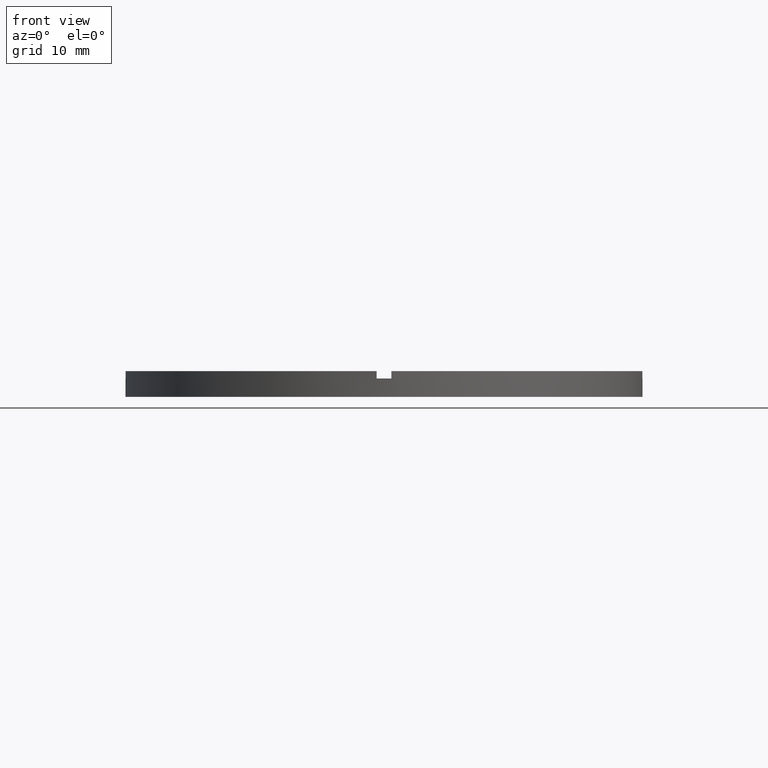
[diagram: clean part render]
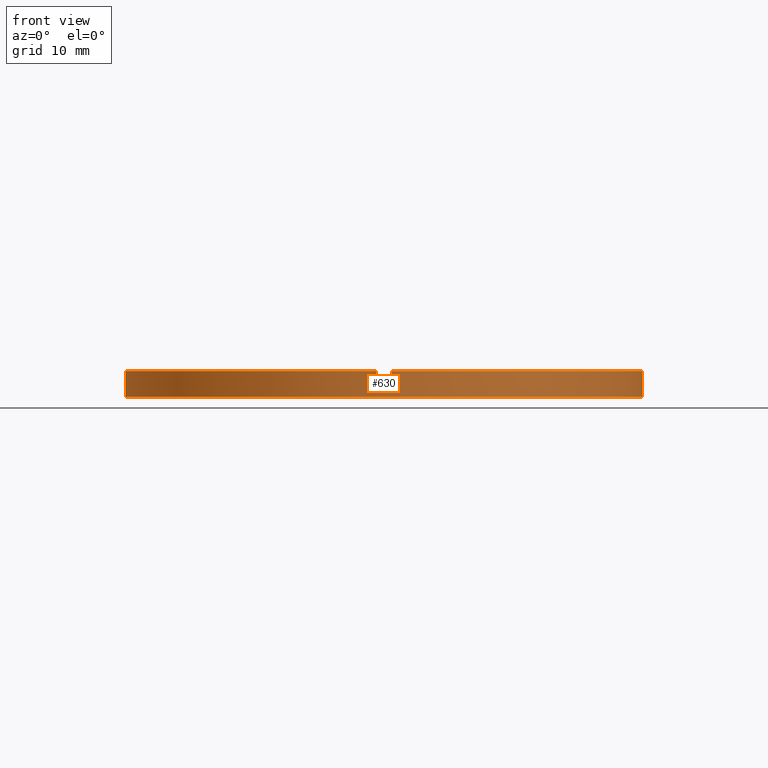
[diagram: same view with one face highlighted and labeled with its STEP entity id]
A machine part, front view. The second image highlights one B-rep face of the part: STEP entity #630.
In plain terms, the highlighted cylindrical surface (partial cylindrical patch) has radius 35 mm, axis along (-0, -0, -1).
Its self-contained STEP definition (entity closure, byte-faithful):
#11 = EDGE_CURVE ( 'NONE', #323, #635, #642, .T. ) ;
#26 = AXIS2_PLACEMENT_3D ( 'NONE', #534, #580, #274 ) ;
#30 = CARTESIAN_POINT ( 'NONE',  ( 0.000000000000000000, 0.000000000000000000, 0.000000000000000000 ) ) ;
#31 = CARTESIAN_POINT ( 'NONE',  ( 34.98571136907180090, -1.000000000000157874, 2.500000000000000000 ) ) ;
#37 = DIRECTION ( 'NONE',  ( 1.000000000000000000, 0.000000000000000000, 0.000000000000000000 ) ) ;
#42 = CARTESIAN_POINT ( 'NONE',  ( -35.00000000000000711, 0.000000000000000000, 3.500000000000000000 ) ) ;
#46 = DIRECTION ( 'NONE',  ( -0.000000000000000000, -0.000000000000000000, -1.000000000000000000 ) ) ;
#52 = CARTESIAN_POINT ( 'NONE',  ( 0.000000000000000000, 0.000000000000000000, 3.500000000000000000 ) ) ;
#67 = VERTEX_POINT ( 'NONE', #544 ) ;
#69 = AXIS2_PLACEMENT_3D ( 'NONE', #52, #279, #566 ) ;
#83 = ORIENTED_EDGE ( 'NONE', *, *, #762, .F. ) ;
#86 = EDGE_CURVE ( 'NONE', #92, #411, #143, .T. ) ;
#92 = VERTEX_POINT ( 'NONE', #213 ) ;
#100 = AXIS2_PLACEMENT_3D ( 'NONE', #535, #431, #37 ) ;
#107 = CARTESIAN_POINT ( 'NONE',  ( 0.9999999999998395728, -34.98571136907181511, 2.500000000000000000 ) ) ;
#113 = ORIENTED_EDGE ( 'NONE', *, *, #616, .T. ) ;
#114 = ORIENTED_EDGE ( 'NONE', *, *, #270, .T. ) ;
#117 = ORIENTED_EDGE ( 'NONE', *, *, #587, .T. ) ;
#126 = VERTEX_POINT ( 'NONE', #317 ) ;
#127 = DIRECTION ( 'NONE',  ( -0.000000000000000000, -0.000000000000000000, -1.000000000000000000 ) ) ;
#128 = CIRCLE ( 'NONE', #681, 35.00000000000000711 ) ;
#135 = EDGE_CURVE ( 'NONE', #411, #126, #128, .T. ) ;
#143 = LINE ( 'NONE', #42, #654 ) ;
#146 = ORIENTED_EDGE ( 'NONE', *, *, #384, .F. ) ;
#151 = EDGE_LOOP ( 'NONE', ( #341, #83, #432, #146, #117, #603, #114, #375, #113, #434, #353, #357 ) ) ;
#165 = CARTESIAN_POINT ( 'NONE',  ( -1.000000000000160538, -34.98571136907180090, 3.500000000000000000 ) ) ;
#171 = LINE ( 'NONE', #768, #178 ) ;
#178 = VECTOR ( 'NONE', #741, 1000.000000000000000 ) ;
#180 = AXIS2_PLACEMENT_3D ( 'NONE', #220, #261, #694 ) ;
#181 = LINE ( 'NONE', #320, #452 ) ;
#186 = VECTOR ( 'NONE', #573, 1000.000000000000000 ) ;
#188 = CYLINDRICAL_SURFACE ( 'NONE', #513, 35.00000000000000711 ) ;
#189 = CARTESIAN_POINT ( 'NONE',  ( -35.00000000000000711, 0.000000000000000000, 0.000000000000000000 ) ) ;
#190 = VECTOR ( 'NONE', #750, 1000.000000000000000 ) ;
#209 = CIRCLE ( 'NONE', #26, 35.00000000000000711 ) ;
#213 = CARTESIAN_POINT ( 'NONE',  ( -35.00000000000000711, 0.000000000000000000, 2.500000000000000000 ) ) ;
#220 = CARTESIAN_POINT ( 'NONE',  ( 0.000000000000000000, 0.000000000000000000, 2.500000000000000000 ) ) ;
#238 = DIRECTION ( 'NONE',  ( 0.000000000000000000, 0.000000000000000000, 1.000000000000000000 ) ) ;
#251 = CARTESIAN_POINT ( 'NONE',  ( -34.98571136907180801, -1.000000000000026645, 3.500000000000000000 ) ) ;
#255 = CARTESIAN_POINT ( 'NONE',  ( 35.00000000000000711, 4.286263797015737285E-15, 3.500000000000000000 ) ) ;
#256 = CARTESIAN_POINT ( 'NONE',  ( -1.000000000000160538, -34.98571136907180090, 2.500000000000000000 ) ) ;
#261 = DIRECTION ( 'NONE',  ( -0.000000000000000000, 0.000000000000000000, 1.000000000000000000 ) ) ;
#270 = EDGE_CURVE ( 'NONE', #323, #389, #589, .T. ) ;
#274 = DIRECTION ( 'NONE',  ( 1.000000000000000000, 0.000000000000000000, 0.000000000000000000 ) ) ;
#277 = DIRECTION ( 'NONE',  ( 0.000000000000000000, 0.000000000000000000, 1.000000000000000000 ) ) ;
#279 = DIRECTION ( 'NONE',  ( 0.000000000000000000, 0.000000000000000000, 1.000000000000000000 ) ) ;
#281 = DIRECTION ( 'NONE',  ( -1.000000000000000000, 0.000000000000000000, 0.000000000000000000 ) ) ;
#310 = EDGE_CURVE ( 'NONE', #413, #389, #437, .T. ) ;
#317 = CARTESIAN_POINT ( 'NONE',  ( 35.00000000000000711, 4.286263797015737285E-15, 0.000000000000000000 ) ) ;
#320 = CARTESIAN_POINT ( 'NONE',  ( -34.98571136907180801, -1.000000000000026645, 3.500000000000000000 ) ) ;
#323 = VERTEX_POINT ( 'NONE', #256 ) ;
#340 = DIRECTION ( 'NONE',  ( -0.000000000000000000, -0.000000000000000000, -1.000000000000000000 ) ) ;
#341 = ORIENTED_EDGE ( 'NONE', *, *, #684, .F. ) ;
#353 = ORIENTED_EDGE ( 'NONE', *, *, #86, .T. ) ;
#357 = ORIENTED_EDGE ( 'NONE', *, *, #135, .T. ) ;
#360 = VERTEX_POINT ( 'NONE', #501 ) ;
#375 = ORIENTED_EDGE ( 'NONE', *, *, #310, .F. ) ;
#384 = EDGE_CURVE ( 'NONE', #360, #422, #727, .T. ) ;
#386 = DIRECTION ( 'NONE',  ( 1.000000000000000000, 0.000000000000000000, 0.000000000000000000 ) ) ;
#389 = VERTEX_POINT ( 'NONE', #545 ) ;
#391 = VERTEX_POINT ( 'NONE', #541 ) ;
#411 = VERTEX_POINT ( 'NONE', #189 ) ;
#413 = VERTEX_POINT ( 'NONE', #251 ) ;
#422 = VERTEX_POINT ( 'NONE', #572 ) ;
#431 = DIRECTION ( 'NONE',  ( 0.000000000000000000, 0.000000000000000000, 1.000000000000000000 ) ) ;
#432 = ORIENTED_EDGE ( 'NONE', *, *, #648, .T. ) ;
#434 = ORIENTED_EDGE ( 'NONE', *, *, #470, .F. ) ;
#437 = CIRCLE ( 'NONE', #69, 35.00000000000000711 ) ;
#452 = VECTOR ( 'NONE', #46, 1000.000000000000000 ) ;
#456 = AXIS2_PLACEMENT_3D ( 'NONE', #724, #527, #386 ) ;
#463 = CIRCLE ( 'NONE', #456, 35.00000000000000711 ) ;
#470 = EDGE_CURVE ( 'NONE', #92, #67, #463, .T. ) ;
#501 = CARTESIAN_POINT ( 'NONE',  ( 0.9999999999998395728, -34.98571136907181511, 3.500000000000000000 ) ) ;
#513 = AXIS2_PLACEMENT_3D ( 'NONE', #539, #340, #281 ) ;
#527 = DIRECTION ( 'NONE',  ( 0.000000000000000000, 0.000000000000000000, 1.000000000000000000 ) ) ;
#534 = CARTESIAN_POINT ( 'NONE',  ( 0.000000000000000000, 0.000000000000000000, 2.500000000000000000 ) ) ;
#535 = CARTESIAN_POINT ( 'NONE',  ( 0.000000000000000000, 0.000000000000000000, 3.500000000000000000 ) ) ;
#536 = CARTESIAN_POINT ( 'NONE',  ( 34.98571136907180090, -1.000000000000157874, 3.500000000000000000 ) ) ;
#539 = CARTESIAN_POINT ( 'NONE',  ( 0.000000000000000000, 0.000000000000000000, 3.500000000000000000 ) ) ;
#541 = CARTESIAN_POINT ( 'NONE',  ( 35.00000000000000711, 4.286263797015737285E-15, 2.500000000000000000 ) ) ;
#544 = CARTESIAN_POINT ( 'NONE',  ( -34.98571136907180801, -1.000000000000026645, 2.500000000000000000 ) ) ;
#545 = CARTESIAN_POINT ( 'NONE',  ( -1.000000000000160538, -34.98571136907180090, 3.500000000000000000 ) ) ;
#566 = DIRECTION ( 'NONE',  ( 1.000000000000000000, 0.000000000000000000, 0.000000000000000000 ) ) ;
#572 = CARTESIAN_POINT ( 'NONE',  ( 34.98571136907180090, -1.000000000000157874, 3.500000000000000000 ) ) ;
#573 = DIRECTION ( 'NONE',  ( 0.000000000000000000, 0.000000000000000000, 1.000000000000000000 ) ) ;
#580 = DIRECTION ( 'NONE',  ( 0.000000000000000000, 0.000000000000000000, 1.000000000000000000 ) ) ;
#581 = VECTOR ( 'NONE', #238, 1000.000000000000000 ) ;
#587 = EDGE_CURVE ( 'NONE', #360, #635, #171, .T. ) ;
#589 = LINE ( 'NONE', #165, #581 ) ;
#603 = ORIENTED_EDGE ( 'NONE', *, *, #11, .F. ) ;
#616 = EDGE_CURVE ( 'NONE', #413, #67, #181, .T. ) ;
#626 = DIRECTION ( 'NONE',  ( 1.000000000000000000, 0.000000000000000000, 0.000000000000000000 ) ) ;
#630 = ADVANCED_FACE ( 'NONE', ( #711 ), #188, .T. ) ;
#635 = VERTEX_POINT ( 'NONE', #107 ) ;
#642 = CIRCLE ( 'NONE', #180, 35.00000000000000711 ) ;
#648 = EDGE_CURVE ( 'NONE', #656, #422, #712, .T. ) ;
#654 = VECTOR ( 'NONE', #127, 1000.000000000000000 ) ;
#656 = VERTEX_POINT ( 'NONE', #31 ) ;
#681 = AXIS2_PLACEMENT_3D ( 'NONE', #30, #277, #626 ) ;
#684 = EDGE_CURVE ( 'NONE', #391, #126, #718, .T. ) ;
#694 = DIRECTION ( 'NONE',  ( 1.000000000000000000, 0.000000000000000000, 0.000000000000000000 ) ) ;
#711 = FACE_OUTER_BOUND ( 'NONE', #151, .T. ) ;
#712 = LINE ( 'NONE', #536, #186 ) ;
#718 = LINE ( 'NONE', #255, #190 ) ;
#724 = CARTESIAN_POINT ( 'NONE',  ( 0.000000000000000000, 0.000000000000000000, 2.500000000000000000 ) ) ;
#727 = CIRCLE ( 'NONE', #100, 35.00000000000000711 ) ;
#741 = DIRECTION ( 'NONE',  ( -0.000000000000000000, -0.000000000000000000, -1.000000000000000000 ) ) ;
#750 = DIRECTION ( 'NONE',  ( -0.000000000000000000, -0.000000000000000000, -1.000000000000000000 ) ) ;
#762 = EDGE_CURVE ( 'NONE', #656, #391, #209, .T. ) ;
#768 = CARTESIAN_POINT ( 'NONE',  ( 0.9999999999998395728, -34.98571136907181511, 3.500000000000000000 ) ) ;